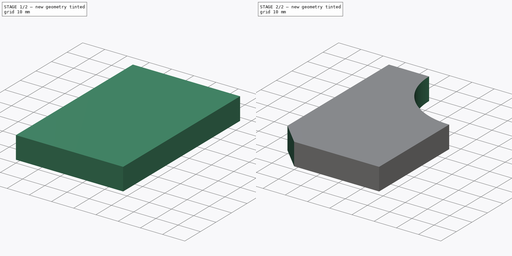
[diagram: build sequence overview — one tinted view per stage of 2, left to right]
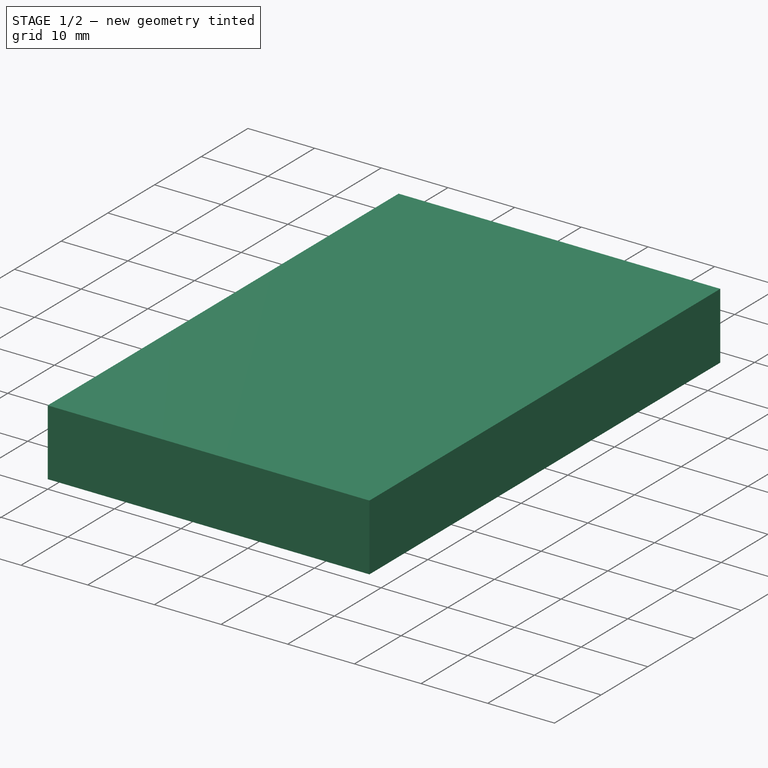
[diagram: stage 1 of 2 — iso view after this stage's code; geometry added in this stage tinted green]
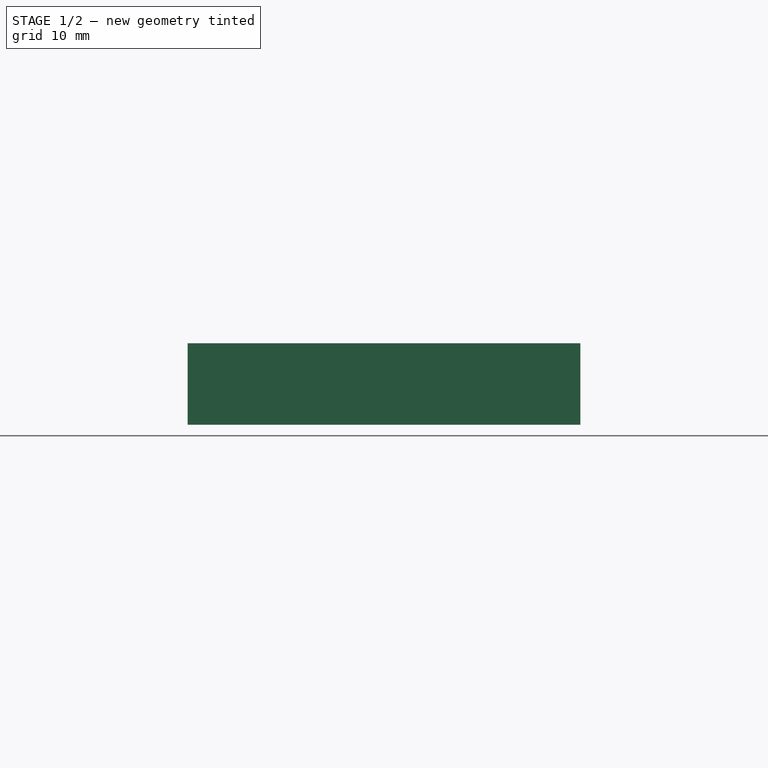
[diagram: stage 1 of 2 — front view after this stage's code; geometry added in this stage tinted green]
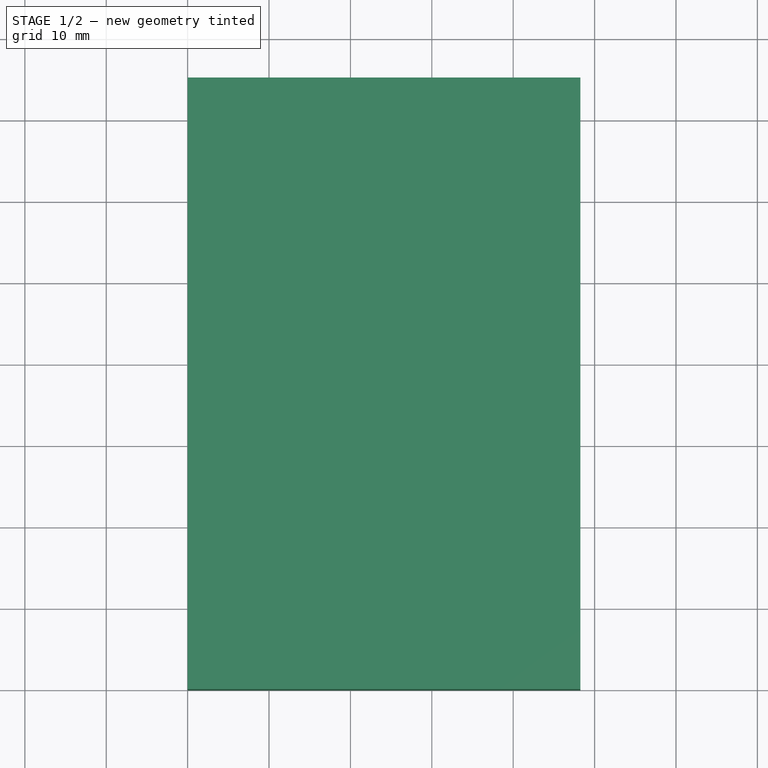
[diagram: stage 1 of 2 — top view after this stage's code; geometry added in this stage tinted green]
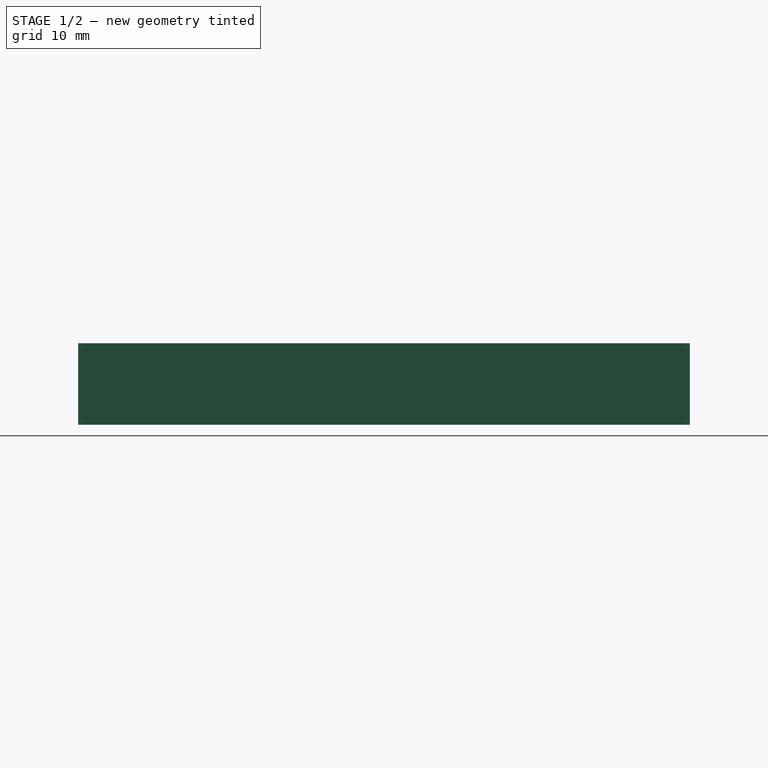
[diagram: stage 1 of 2 — right view after this stage's code; geometry added in this stage tinted green]
FCSTD DOCUMENT  (FreeCAD 0.21R33675 (Git))
Label: YawBearing_Plate_Bottom
License: All rights reserved
LicenseURL: http://en.wikipedia.org/wiki/All_rights_reserved
objects: Sketcher::SketchObject×2, PartDesign::Pad×1, PartDesign::Pocket×1, Spreadsheet::Sheet×1, PartDesign::Body×1
note: 7 computed .brp shape members not serialized (recipe doc carries the construction recipe); baked Part::Feature solids carry a one-line shape summary decoded from their .brp
EXTERNAL_REF file=../Master_of_Puppets.FCStd obj=Alternator
EXTERNAL_REF file=../Master_of_Puppets.FCStd obj=Spreadsheet
EXTERNAL_REF file=../Master_of_Puppets.FCStd obj=YawBearing

FEATURE [Sketcher::SketchObject] Sketch
  FullyConstrained = true
  MapMode = 5
  Support = -> [XY_Plane001]
  expr: Constraints[10] = Spreadsheet.Width
  expr: Constraints[9] = Spreadsheet.Length
  sketch-geometry (4):
    g0: LineSegment StartX=0 StartY=0 StartZ=0 EndX=48.25 EndY=0 EndZ=0
    g1: LineSegment StartX=48.25 StartY=0 StartZ=0 EndX=48.25 EndY=75.15 EndZ=0
    g2: LineSegment StartX=48.25 StartY=75.15 StartZ=0 EndX=0 EndY=75.15 EndZ=0
    g3: LineSegment StartX=0 StartY=75.15 StartZ=0 EndX=0 EndY=0 EndZ=0
  constraints (11):
    c: Coincident(g0,g1)
    c: Coincident(g1,g2)
    c: Coincident(g2,g3)
    c: Coincident(g3,g0)
    c: Horizontal(g0)
    c: Horizontal(g2)
    c: Vertical(g1)
    c: Vertical(g3)
    c: Coincident(g0,g-1)
    c: Distance(g3) = 75.15
    c: Distance(g2) = 48.25
FEATURE [PartDesign::Pad] Pad
  AllowMultiFace = false
  Direction = (0,0,1)
  Length = 10
  Length2 = 100
  Profile = -> Sketch
  Type = 0
  expr: Length = Spreadsheet.FlatMetalThickness
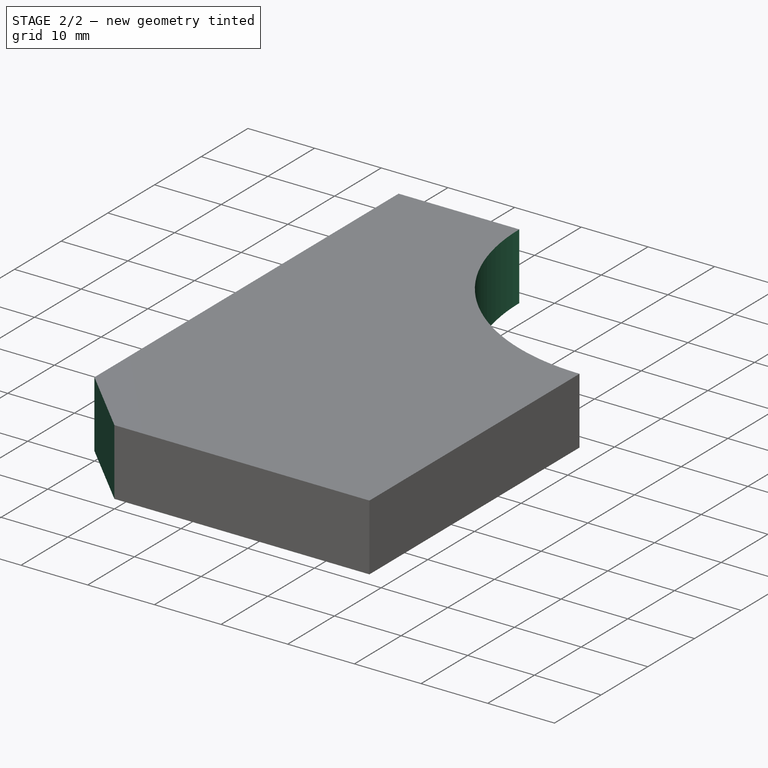
[diagram: stage 2 of 2 — iso view after this stage's code; geometry added in this stage tinted green]
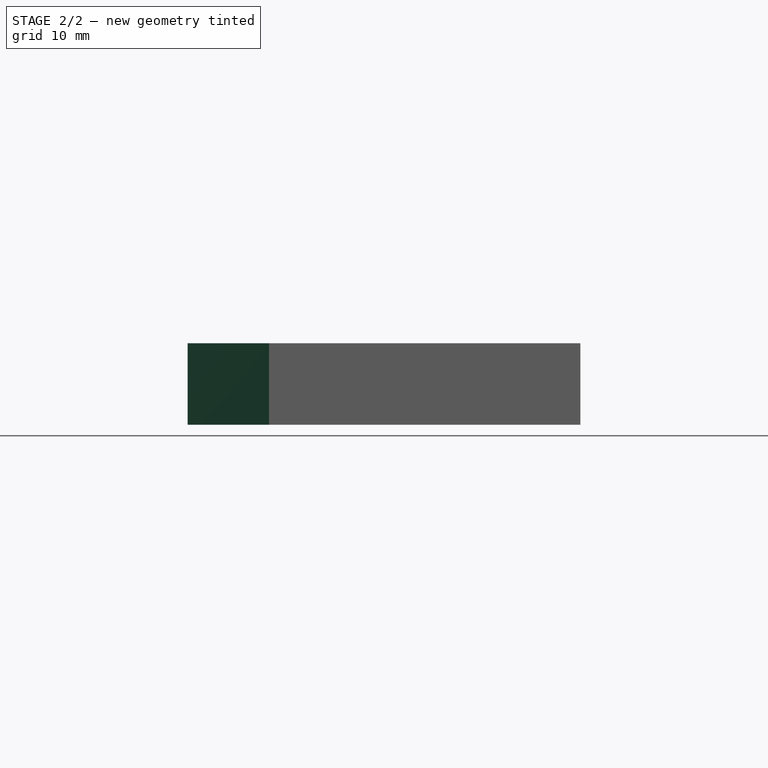
[diagram: stage 2 of 2 — front view after this stage's code; geometry added in this stage tinted green]
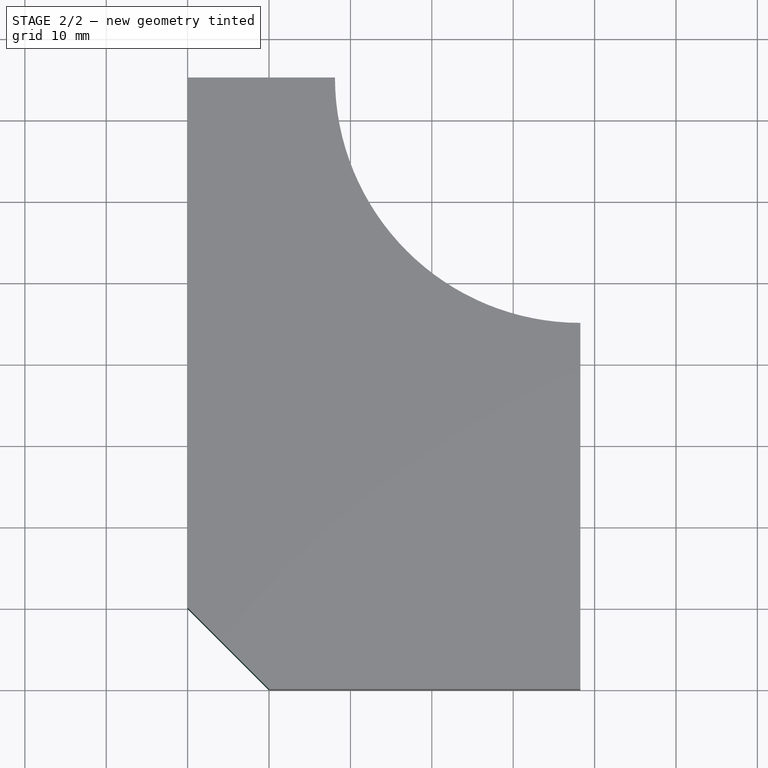
[diagram: stage 2 of 2 — top view after this stage's code; geometry added in this stage tinted green]
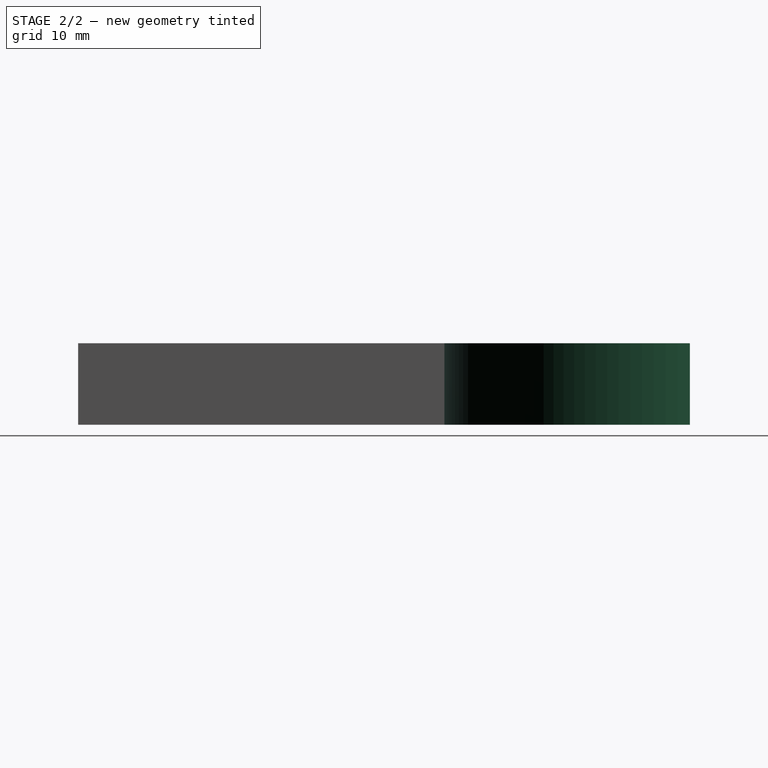
[diagram: stage 2 of 2 — right view after this stage's code; geometry added in this stage tinted green]
FEATURE [Sketcher::SketchObject] Sketch001
  ExternalGeometry = -> [Pad]
  FullyConstrained = true
  MapMode = 5
  Placement = pos=(0,0,10) rot=(0,0,1;0rad)
  Support = -> [Pad]
  expr: Constraints[0] = Spreadsheet.YawPipeRadius
  expr: Constraints[3] = Spreadsheet.YawBearingPlateCornerChamferLength
  sketch-geometry (4):
    g0: Circle CenterX=48.25 CenterY=75.15 CenterZ=0 NormalX=0 NormalY=0 NormalZ=1 AngleXU=0 Radius=30.15
    g1: LineSegment StartX=0 StartY=10 StartZ=0 EndX=10 EndY=0 EndZ=0
    g2: LineSegment StartX=0 StartY=10 StartZ=0 EndX=0 EndY=0 EndZ=0
    g3: LineSegment StartX=0 StartY=0 StartZ=0 EndX=10 EndY=0 EndZ=0
  constraints (10):
    c: Radius(g0) = 30.15
    c: PointOnObject(g1,g-6)
    c: PointOnObject(g1,g-5)
    c: DistanceY(g-1,g1) = 10
    c: Coincident(g2,g1)
    c: Coincident(g2,g-1)
    c: Coincident(g3,g-1)
    c: Coincident(g3,g1)
    c: Coincident(g-4,g0)
    c: Equal(g3,g2)
FEATURE [PartDesign::Pocket] Pocket
  AllowMultiFace = false
  BaseFeature = -> Pad
  Direction = (0,0,-1)
  Length = 5
  Length2 = 100
  Profile = -> Sketch001
  Type = 1
FEATURE [Spreadsheet::Sheet] Spreadsheet
  cells = A1='Inputs; A2='YawPipeDiameter; B2(YawPipeDiameter)==Master_of_Puppets#Spreadsheet.YawPipeDiameter; A3='FlatMetalThickness; B3(FlatMetalThickness)==Master_of_Puppets#Spreadsheet.FlatMetalThickness; A4='I; B4(I)==Master_of_Puppets#Alternator.I; A5='j; B5(j)==Master_of_Puppets#Alternator.j; A6='YawBearingPlateCornerChamferLength; B6(YawBearingPlateCornerChamferLength)==Master_of_Puppets#YawBearing.YawBearingPlateCornerChamferLength; A7='Calculated; A8='YawPipeRadius; B8(YawPipeRadius)==YawPipeDiameter / 2; A9='Length; B9(Length)==YawPipeRadius + j; A10='Width; B10(Width)==YawPipeRadius + I
FEATURE [PartDesign::Body] PocketBody  label="YawBearing_Plate_Bottom"
  Group = -> [Sketch,Pad,Sketch001,Pocket]
  Openafpm_Flat = true
  Origin = -> Origin001
  Tip = -> Pocket
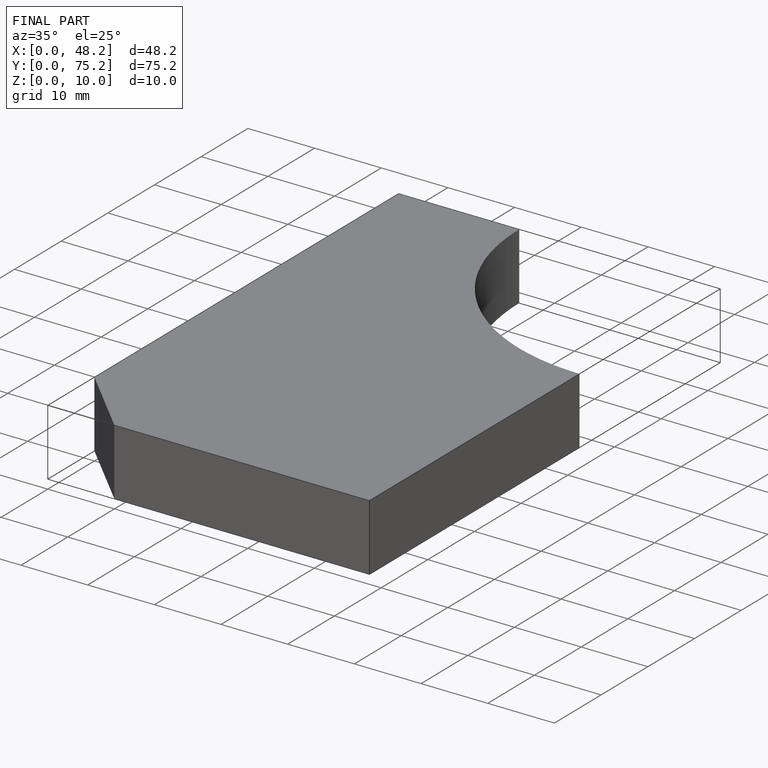
[diagram: finished part — iso view with bounding-box wireframe]
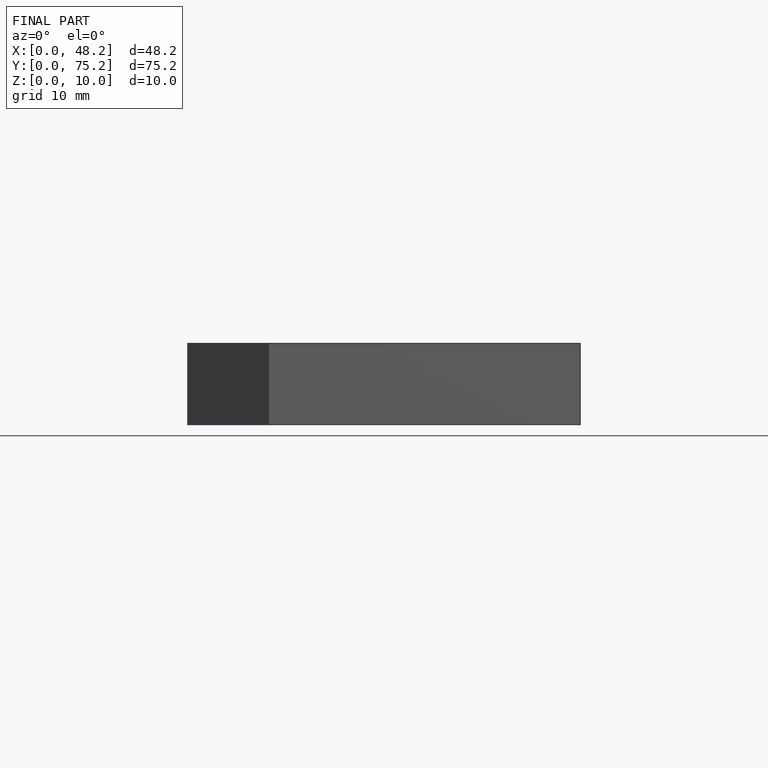
[diagram: finished part — front view with bounding-box wireframe]
